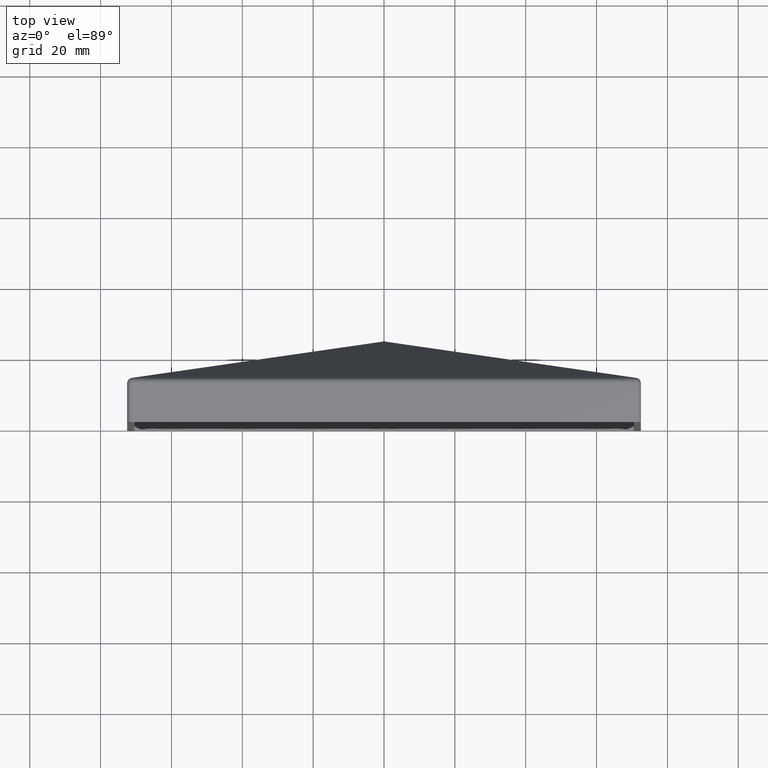
[diagram: clean part render]
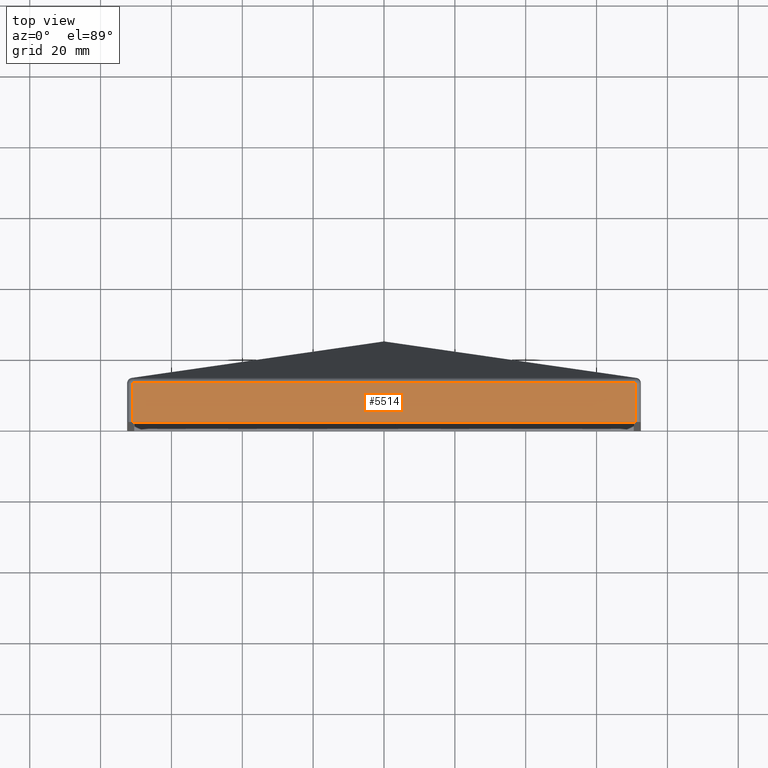
[diagram: same view with one face highlighted and labeled with its STEP entity id]
A machine part, top view. The second image highlights one B-rep face of the part: STEP entity #5514.
In plain terms, the highlighted planar face has unit normal (0, 0, -1).
Its self-contained STEP definition (entity closure, byte-faithful):
#343 = CARTESIAN_POINT ( 'NONE',  ( -72.49999999999998600, 24.00000000000000000, 72.50000000000001400 ) ) ;
#397 = CARTESIAN_POINT ( 'NONE',  ( 71.00000000000001400, 24.00000000000000000, 72.50000000000001400 ) ) ;
#1578 = ORIENTED_EDGE ( 'NONE', *, *, #3896, .T. ) ;
#1644 = DIRECTION ( 'NONE',  ( 0.0000000000000000000, -1.000000000000000000, 0.0000000000000000000 ) ) ;
#1937 = VERTEX_POINT ( 'NONE', #4288 ) ;
#2128 = LINE ( 'NONE', #8060, #5641 ) ;
#2541 = EDGE_CURVE ( 'NONE', #1937, #5663, #7375, .T. ) ;
#2985 = LINE ( 'NONE', #7165, #10179 ) ;
#3144 = VECTOR ( 'NONE', #8886, 1000.000000000000000 ) ;
#3803 = VECTOR ( 'NONE', #10271, 1000.000000000000000 ) ;
#3896 = EDGE_CURVE ( 'NONE', #5742, #1937, #2985, .T. ) ;
#4054 = DIRECTION ( 'NONE',  ( 1.000000000000000000, 0.0000000000000000000, 0.0000000000000000000 ) ) ;
#4288 = CARTESIAN_POINT ( 'NONE',  ( 71.00000000000001400, 0.0000000000000000000, 72.50000000000001400 ) ) ;
#4424 = PLANE ( 'NONE',  #5162 ) ;
#5162 = AXIS2_PLACEMENT_3D ( 'NONE', #343, #5300, #6107 ) ;
#5300 = DIRECTION ( 'NONE',  ( 0.0000000000000000000, 0.0000000000000000000, -1.000000000000000000 ) ) ;
#5514 = ADVANCED_FACE ( 'NONE', ( #7110 ), #4424, .F. ) ;
#5599 = ORIENTED_EDGE ( 'NONE', *, *, #2541, .T. ) ;
#5641 = VECTOR ( 'NONE', #1644, 1000.000000000000000 ) ;
#5663 = VERTEX_POINT ( 'NONE', #9724 ) ;
#5742 = VERTEX_POINT ( 'NONE', #5754 ) ;
#5754 = CARTESIAN_POINT ( 'NONE',  ( -70.99999999999998600, 0.0000000000000000000, 72.50000000000001400 ) ) ;
#5769 = EDGE_CURVE ( 'NONE', #5663, #5843, #10587, .T. ) ;
#5843 = VERTEX_POINT ( 'NONE', #6672 ) ;
#6107 = DIRECTION ( 'NONE',  ( -1.000000000000000000, 0.0000000000000000000, -0.0000000000000000000 ) ) ;
#6528 = CARTESIAN_POINT ( 'NONE',  ( 72.50000000000004300, 11.00000000000000000, 72.50000000000000000 ) ) ;
#6672 = CARTESIAN_POINT ( 'NONE',  ( -70.99999999999998600, 11.00000000000000000, 72.50000000000002800 ) ) ;
#6901 = EDGE_CURVE ( 'NONE', #5843, #5742, #2128, .T. ) ;
#7110 = FACE_OUTER_BOUND ( 'NONE', #8531, .T. ) ;
#7165 = CARTESIAN_POINT ( 'NONE',  ( -72.49999999999998600, 0.0000000000000000000, 72.50000000000001400 ) ) ;
#7375 = LINE ( 'NONE', #397, #3803 ) ;
#8060 = CARTESIAN_POINT ( 'NONE',  ( -70.99999999999998600, 24.00000000000000000, 72.50000000000001400 ) ) ;
#8531 = EDGE_LOOP ( 'NONE', ( #9395, #9013, #1578, #5599 ) ) ;
#8886 = DIRECTION ( 'NONE',  ( -1.000000000000000000, -0.0000000000000000000, 2.220446049250313100E-016 ) ) ;
#9013 = ORIENTED_EDGE ( 'NONE', *, *, #6901, .T. ) ;
#9395 = ORIENTED_EDGE ( 'NONE', *, *, #5769, .T. ) ;
#9724 = CARTESIAN_POINT ( 'NONE',  ( 71.00000000000001400, 11.00000000000000000, 72.50000000000000000 ) ) ;
#10179 = VECTOR ( 'NONE', #4054, 1000.000000000000000 ) ;
#10271 = DIRECTION ( 'NONE',  ( -0.0000000000000000000, 1.000000000000000000, -0.0000000000000000000 ) ) ;
#10587 = LINE ( 'NONE', #6528, #3144 ) ;